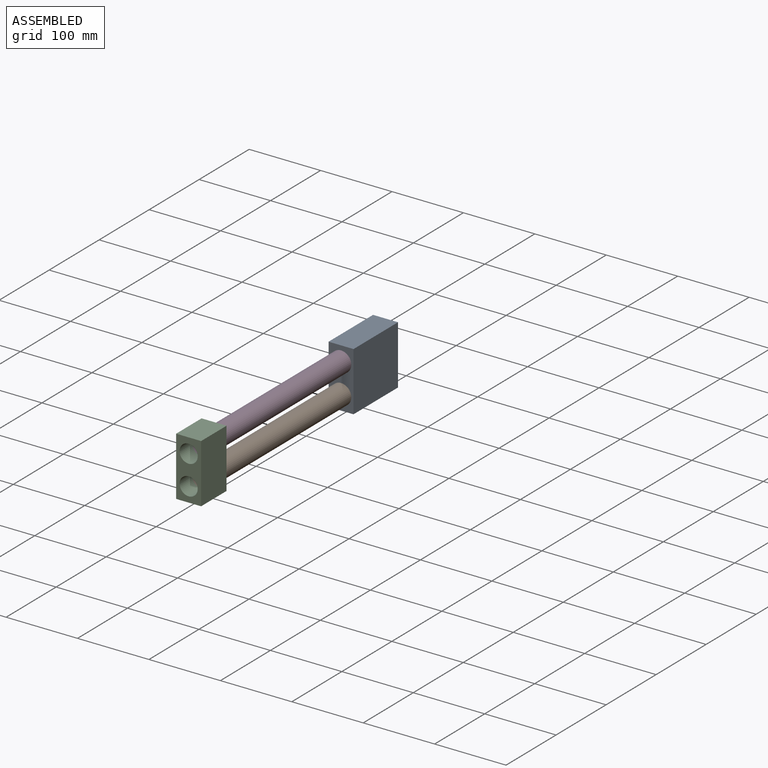
[diagram: assembled view]
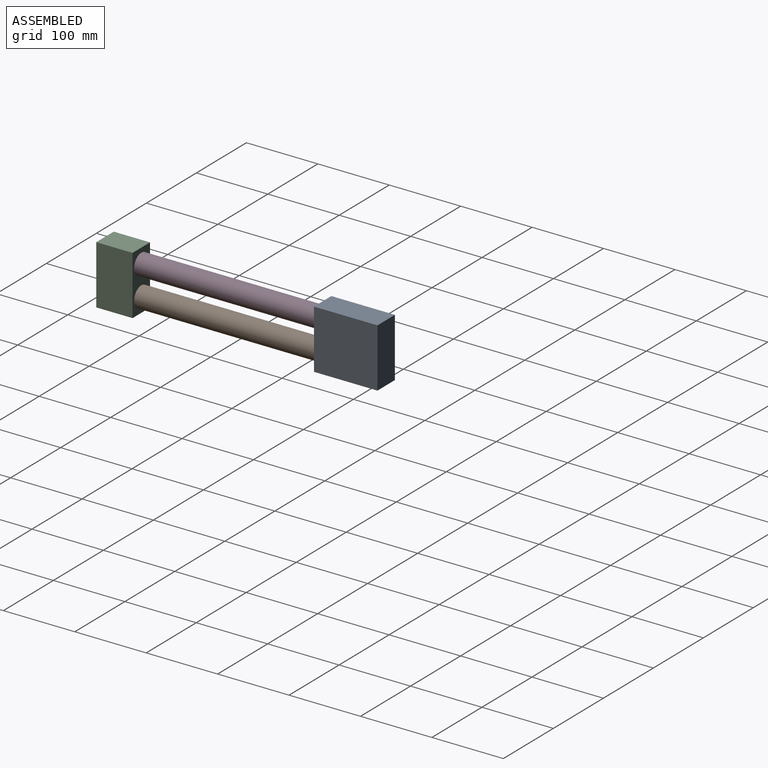
[diagram: assembled view, second angle]
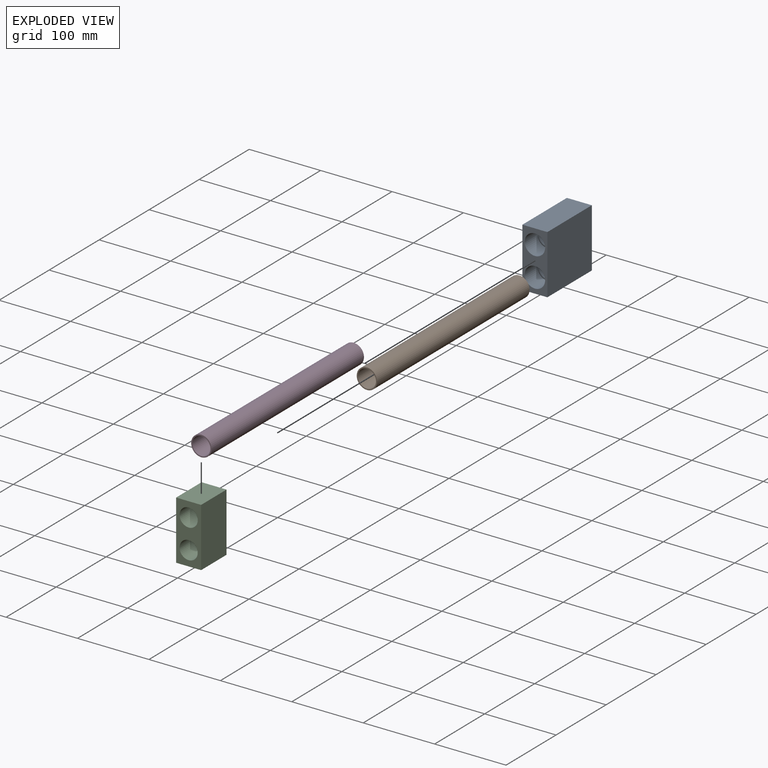
[diagram: exploded view]
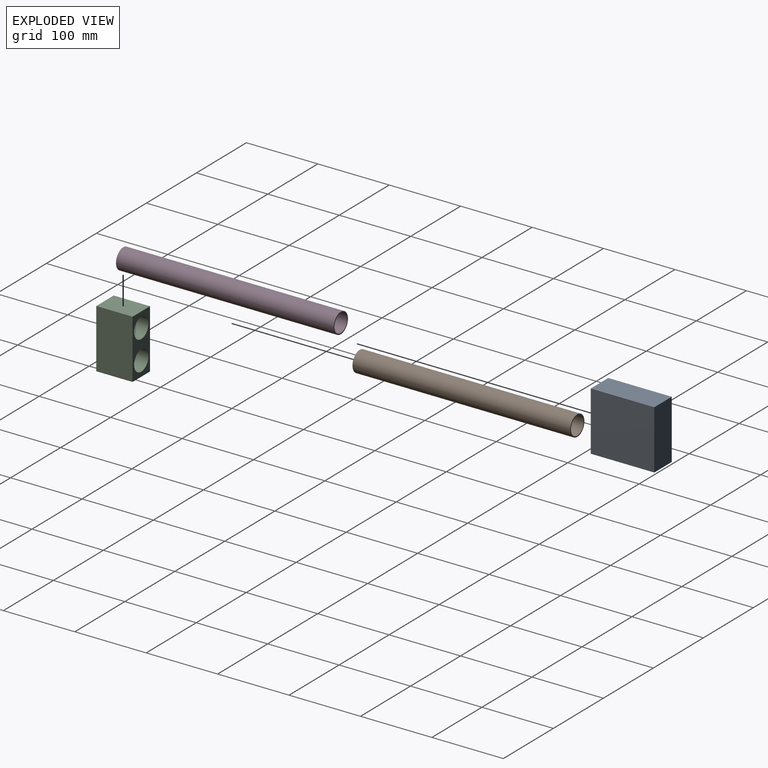
[diagram: exploded view, second angle]
ASSEMBLY  parts=4 mates=3
PART A: 13 faces, bbox 34.9x88.9x82.6 mm
  f0: plane 82.55x34.93mm, normal (0,-1,0), area 1600.5mm2, adj f1,f3,f4,f5,f6,f8
  f1: plane 88.9x34.93mm, normal (0,0,-1), area 3104.8mm2, adj f0,f2,f4,f5
  f2: plane 82.55x34.93mm, normal (0,1,0), area 2883.1mm2, adj f1,f3,f4,f5
  f3: plane 88.9x34.93mm, normal (0,0,1), area 3104.8mm2, adj f0,f2,f4,f5
  f4: plane 88.9x82.55mm, normal (1,0,0), area 7338.7mm2, adj f0,f1,f2,f3
  f5: plane 88.9x82.55mm, normal (-1,0,0), area 7338.7mm2, adj f0,f1,f2,f3
  f6: cylinder r=14.29mm len=28.58mm, axis (0,-1,0), area 2280.2mm2, adj f0,f7
  f7: plane 28.58x28.58mm, normal (0,-1,0), area 134.6mm2, adj f6,f11
  f8: cylinder r=14.29mm len=28.58mm, axis (0,-1,0), area 2280.2mm2, adj f0,f9
  f9: plane 28.58x28.58mm, normal (0,-1,0), area 134.6mm2, adj f8,f10
  f10: cylinder r=12.7mm len=25.4mm, axis (0,-1,0), area 2026.8mm2, adj f9,f12
  f11: cylinder r=12.7mm len=25.4mm, axis (0,-1,0), area 2026.8mm2, adj f7,f12
  f12: torus R=20.64mm, axis (1,0,0), area 5173.6mm2, adj f10,f11
PART B: 4 faces, bbox 28.6x304.8x28.6 mm
  f0: cylinder r=12.7mm len=304.8mm, axis (0,1,0), area 24322mm2, adj f2,f3
  f1: cylinder r=14.29mm len=304.8mm, axis (0,1,0), area 27362.2mm2, adj f2,f3
  f2: plane 28.58x28.58mm, normal (0,-1,0), area 134.6mm2, adj f0,f1
  f3: plane 28.58x28.58mm, normal (0,1,0), area 134.6mm2, adj f0,f1
PART C: 12 faces, bbox 34.9x50.8x82.6 mm
  f0: plane 50.8x34.93mm, normal (0,0,-1), area 1774.2mm2, adj f1,f5,f6,f10
  f1: plane 82.55x50.8mm, normal (1,0,0), area 4193.5mm2, adj f0,f2,f6,f10
  f2: plane 50.8x34.93mm, normal (0,0,1), area 1774.2mm2, adj f1,f5,f6,f10
  f3: cylinder r=14.29mm len=28.58mm, axis (0,-1,0), area 2280.2mm2, adj f6,f7
  f4: cylinder r=14.29mm len=28.58mm, axis (0,-1,0), area 2280.2mm2, adj f6,f11
  f5: plane 82.55x50.8mm, normal (-1,0,0), area 4193.5mm2, adj f0,f2,f6,f10
  f6: plane 82.55x34.93mm, normal (0,1,0), area 1600.5mm2, adj f0,f1,f2,f3,f4,f5
  f7: plane 28.58x28.58mm, normal (0,1,0), area 134.6mm2, adj f3,f9
  f8: cylinder r=12.7mm len=25.4mm, axis (0,1,0), area 2026.8mm2, adj f10,f11
  f9: cylinder r=12.7mm len=25.4mm, axis (0,1,0), area 2026.8mm2, adj f7,f10
  f10: plane 82.55x34.93mm, normal (0,-1,0), area 1869.6mm2, adj f0,f1,f2,f5,f8,f9
  f11: plane 28.58x28.58mm, normal (0,1,0), area 134.6mm2, adj f4,f8
PART D: same geometry as B
PLACE A t=(0,139.7,0)mm
PLACE B at identity
PLACE C t=(0,-152.4,0)mm
PLACE D t=(0,0,41.27)mm
MATE cylindrical B.f0 <-> C.f9  axis (0,1,0) through (0,-152.4,0)mm
MATE cylindrical D.f0 <-> C.f4  axis (0,-1,0) through (0,-152.4,41.27)mm
MATE fastened A.f8 <-> D.f0  axis (0,-1,0) through (0,152.4,41.27)mm
